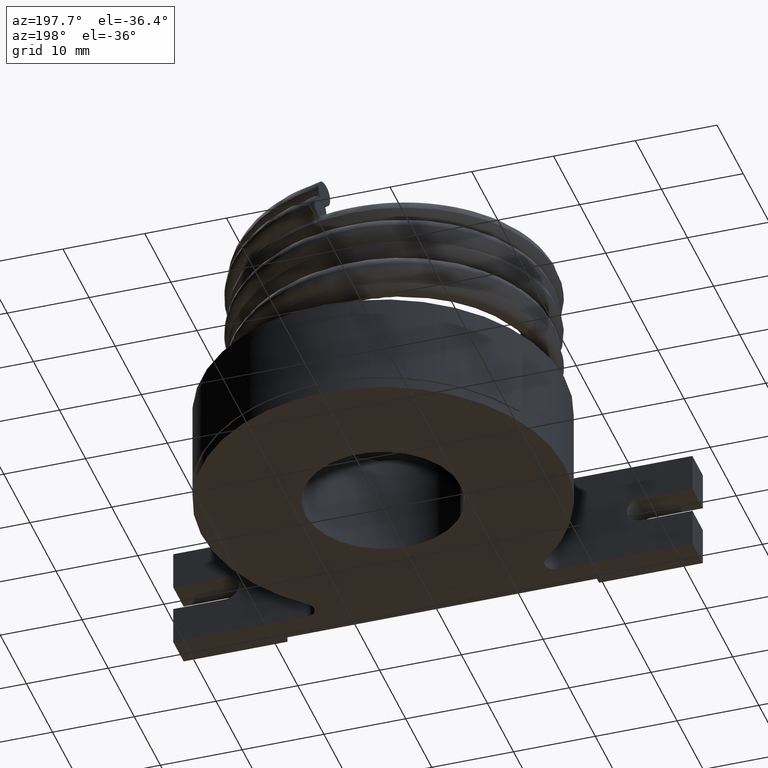
[diagram: clean part render]
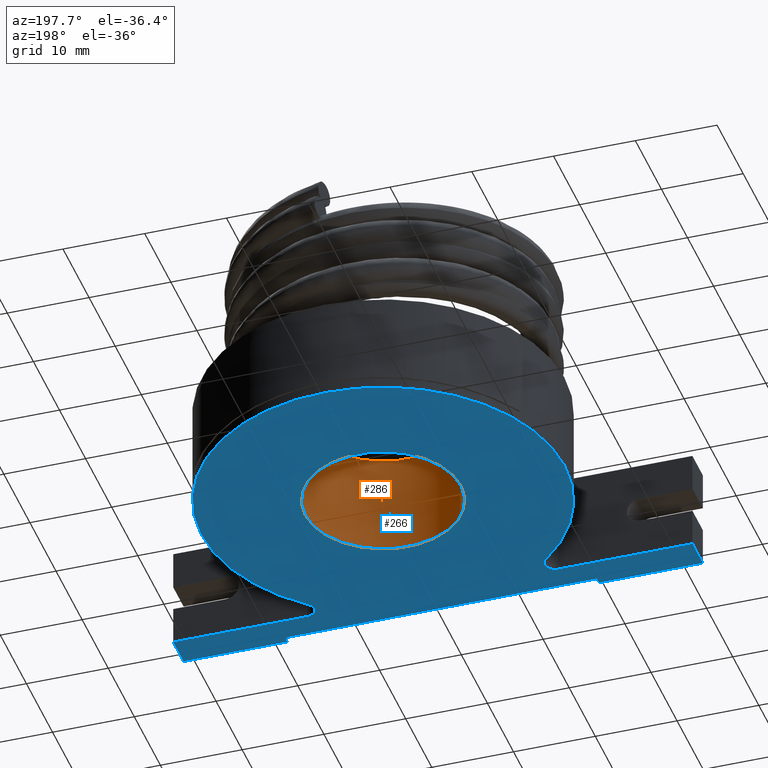
[diagram: same view with the hole feature highlighted: cylindrical wall and planar end face, labeled with their STEP entity ids]
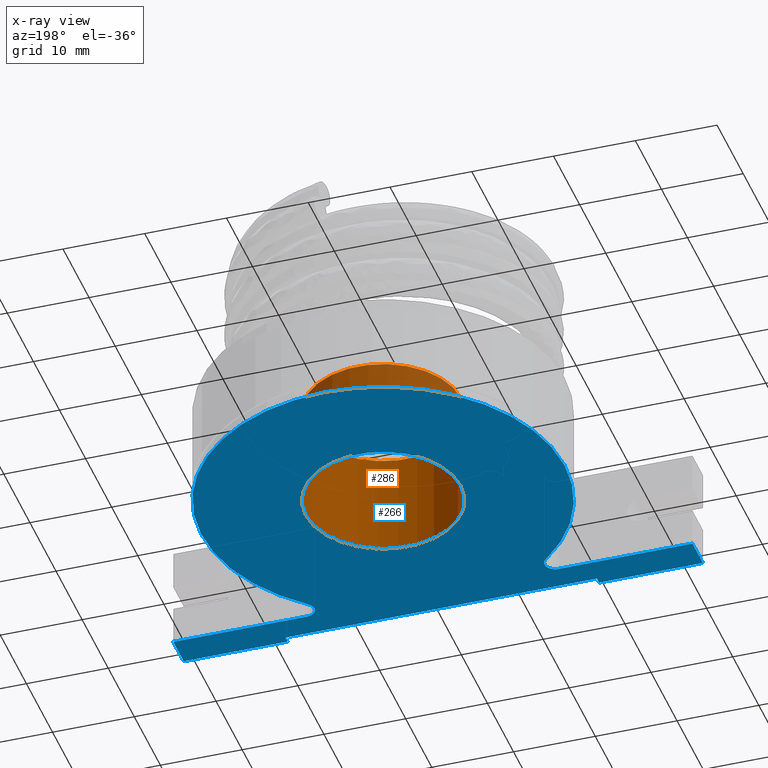
[diagram: x-ray of the same camera — body ghosted, the hole faces saturated]
A machine part, auxiliary view. The highlighted faces form one hole feature of diameter 19.05 mm: the cylindrical wall (entity #286, orange) and its adjacent planar end face (entity #266, blue) — they share a circular edge in the B-rep.
The next image is the same camera in x-ray (body ghosted, the hole faces saturated) — the bore reads through the body.
Wall:
#255=CARTESIAN_POINT('',(9.525000000000002,0.0,0.0));
#256=VERTEX_POINT('',#255);
#257=CARTESIAN_POINT('',(0.0,0.0,0.0));
#258=DIRECTION('',(0.0,0.0,-1.0));
#259=DIRECTION('',(-1.0,0.0,0.0));
#260=AXIS2_PLACEMENT_3D('',#257,#258,#259);
#261=CIRCLE('',#260,9.525000000000002);
#262=EDGE_CURVE('',#256,#256,#261,.T.);
#267=CARTESIAN_POINT('',(0.0,0.0,-0.635));
#268=DIRECTION('',(0.0,0.0,1.0));
#269=DIRECTION('',(0.0,1.0,0.0));
#270=AXIS2_PLACEMENT_3D('',#267,#268,#269);
#271=CYLINDRICAL_SURFACE('',#270,9.525000000000002);
#272=ORIENTED_EDGE('',*,*,#262,.T.);
#273=EDGE_LOOP('',(#272));
#274=FACE_OUTER_BOUND('',#273,.T.);
#275=CARTESIAN_POINT('',(9.525000000000002,0.0,12.699999999999998));
#276=VERTEX_POINT('',#275);
#277=CARTESIAN_POINT('',(0.0,0.0,12.699999999999999));
#278=DIRECTION('',(0.0,0.0,-1.0));
#279=DIRECTION('',(1.0,0.0,0.0));
#280=AXIS2_PLACEMENT_3D('',#277,#278,#279);
#281=CIRCLE('',#280,9.525000000000002);
#282=EDGE_CURVE('',#276,#276,#281,.T.);
#283=ORIENTED_EDGE('',*,*,#282,.F.);
#284=EDGE_LOOP('',(#283));
#285=FACE_BOUND('',#284,.T.);
#286=ADVANCED_FACE('',(#274,#285),#271,.F.);
End face:
#149=CARTESIAN_POINT('',(-34.924999999999997,-25.319000000000003,0.0));
#150=DIRECTION('',(0.0,0.0,1.0));
#151=DIRECTION('',(1.0,0.0,0.0));
#152=AXIS2_PLACEMENT_3D('',#149,#150,#151);
#153=PLANE('',#152);
#154=CARTESIAN_POINT('',(-15.352810817569997,-19.055,0.0));
#155=VERTEX_POINT('',#154);
#156=CARTESIAN_POINT('',(-31.750000000000004,-19.055,0.0));
#157=VERTEX_POINT('',#156);
#158=CARTESIAN_POINT('',(-15.352810817569997,-19.055,0.0));
#159=DIRECTION('',(-1.0,0.0,0.0));
#160=VECTOR('',#159,16.397189182430004);
#161=LINE('',#158,#160);
#162=EDGE_CURVE('',#155,#157,#161,.T.);
#163=ORIENTED_EDGE('',*,*,#162,.F.);
#164=CARTESIAN_POINT('',(-14.522929151750708,-16.82364864865081,0.0));
#165=VERTEX_POINT('',#164);
#166=CARTESIAN_POINT('',(-15.352810817569999,-17.785000000000004,0.0));
#167=DIRECTION('',(0.0,0.0,1.0));
#168=DIRECTION('',(0.0,-1.0,0.0));
#169=AXIS2_PLACEMENT_3D('',#166,#167,#168);
#170=CIRCLE('',#169,1.27);
#171=EDGE_CURVE('',#155,#165,#170,.T.);
#172=ORIENTED_EDGE('',*,*,#171,.T.);
#173=CARTESIAN_POINT('',(14.522929151751187,-16.823648648650398,0.0));
#174=VERTEX_POINT('',#173);
#175=CARTESIAN_POINT('',(0.0,0.0,0.0));
#176=DIRECTION('',(0.0,0.0,1.0));
#177=DIRECTION('',(0.653450130562513,-0.756969567993215,0.0));
#178=AXIS2_PLACEMENT_3D('',#175,#176,#177);
#179=CIRCLE('',#178,22.225000000000001);
#180=EDGE_CURVE('',#174,#165,#179,.T.);
#181=ORIENTED_EDGE('',*,*,#180,.F.);
#182=CARTESIAN_POINT('',(15.352810817569997,-19.055,0.0));
#183=VERTEX_POINT('',#182);
#184=CARTESIAN_POINT('',(15.352810817569999,-17.785000000000004,0.0));
#185=DIRECTION('',(0.0,0.0,1.0));
#186=DIRECTION('',(-0.653450130562513,0.756969567993215,0.0));
#187=AXIS2_PLACEMENT_3D('',#184,#185,#186);
#188=CIRCLE('',#187,1.27);
#189=EDGE_CURVE('',#174,#183,#188,.T.);
#190=ORIENTED_EDGE('',*,*,#189,.T.);
#191=CARTESIAN_POINT('',(31.750000000000004,-19.055,0.0));
#192=VERTEX_POINT('',#191);
#193=CARTESIAN_POINT('',(31.750000000000004,-19.055,0.0));
#194=DIRECTION('',(-1.0,0.0,0.0));
#195=VECTOR('',#194,16.397189182430008);
#196=LINE('',#193,#195);
#197=EDGE_CURVE('',#192,#183,#196,.T.);
#198=ORIENTED_EDGE('',*,*,#197,.F.);
#199=CARTESIAN_POINT('',(31.750000000000004,-23.055,0.0));
#200=VERTEX_POINT('',#199);
#201=CARTESIAN_POINT('',(31.750000000000004,-23.055,0.0));
#202=DIRECTION('',(0.0,1.0,0.0));
#203=VECTOR('',#202,4.0);
#204=LINE('',#201,#203);
#205=EDGE_CURVE('',#200,#192,#204,.T.);
#206=ORIENTED_EDGE('',*,*,#205,.F.);
#207=CARTESIAN_POINT('',(19.050000000000004,-23.055,0.0));
#208=VERTEX_POINT('',#207);
#209=CARTESIAN_POINT('',(19.050000000000004,-23.055,0.0));
#210=DIRECTION('',(1.0,0.0,0.0));
#211=VECTOR('',#210,12.699999999999999);
#212=LINE('',#209,#211);
#213=EDGE_CURVE('',#208,#200,#212,.T.);
#214=ORIENTED_EDGE('',*,*,#213,.F.);
#215=CARTESIAN_POINT('',(19.050000000000004,-22.225000000000005,0.0));
#216=VERTEX_POINT('',#215);
#217=CARTESIAN_POINT('',(19.050000000000004,-22.225000000000005,0.0));
#218=DIRECTION('',(0.0,-1.0,0.0));
#219=VECTOR('',#218,0.829999999999995);
#220=LINE('',#217,#219);
#221=EDGE_CURVE('',#216,#208,#220,.T.);
#222=ORIENTED_EDGE('',*,*,#221,.F.);
#223=CARTESIAN_POINT('',(-19.050000000000004,-22.225000000000005,0.0));
#224=VERTEX_POINT('',#223);
#225=CARTESIAN_POINT('',(-19.050000000000004,-22.225000000000001,0.0));
#226=DIRECTION('',(1.0,0.0,0.0));
#227=VECTOR('',#226,38.100000000000009);
#228=LINE('',#225,#227);
#229=EDGE_CURVE('',#224,#216,#228,.T.);
#230=ORIENTED_EDGE('',*,*,#229,.F.);
#231=CARTESIAN_POINT('',(-19.050000000000004,-23.055,0.0));
#232=VERTEX_POINT('',#231);
#233=CARTESIAN_POINT('',(-19.050000000000004,-22.225000000000005,0.0));
#234=DIRECTION('',(0.0,-1.0,0.0));
#235=VECTOR('',#234,0.829999999999995);
#236=LINE('',#233,#235);
#237=EDGE_CURVE('',#224,#232,#236,.T.);
#238=ORIENTED_EDGE('',*,*,#237,.T.);
#239=CARTESIAN_POINT('',(-31.750000000000004,-23.055,0.0));
#240=VERTEX_POINT('',#239);
#241=CARTESIAN_POINT('',(-31.750000000000004,-23.055,0.0));
#242=DIRECTION('',(1.0,0.0,0.0));
#243=VECTOR('',#242,12.699999999999999);
#244=LINE('',#241,#243);
#245=EDGE_CURVE('',#240,#232,#244,.T.);
#246=ORIENTED_EDGE('',*,*,#245,.F.);
#247=CARTESIAN_POINT('',(-31.750000000000004,-23.055,0.0));
#248=DIRECTION('',(0.0,1.0,0.0));
#249=VECTOR('',#248,4.0);
#250=LINE('',#247,#249);
#251=EDGE_CURVE('',#240,#157,#250,.T.);
#252=ORIENTED_EDGE('',*,*,#251,.T.);
#253=EDGE_LOOP('',(#163,#172,#181,#190,#198,#206,#214,#222,#230,#238,#246,#252));
#254=FACE_OUTER_BOUND('',#253,.T.);
#255=CARTESIAN_POINT('',(9.525000000000002,0.0,0.0));
#256=VERTEX_POINT('',#255);
#257=CARTESIAN_POINT('',(0.0,0.0,0.0));
#258=DIRECTION('',(0.0,0.0,-1.0));
#259=DIRECTION('',(-1.0,0.0,0.0));
#260=AXIS2_PLACEMENT_3D('',#257,#258,#259);
#261=CIRCLE('',#260,9.525000000000002);
#262=EDGE_CURVE('',#256,#256,#261,.T.);
#263=ORIENTED_EDGE('',*,*,#262,.F.);
#264=EDGE_LOOP('',(#263));
#265=FACE_BOUND('',#264,.T.);
#266=ADVANCED_FACE('',(#254,#265),#153,.F.);